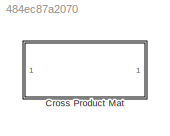
MODEL slx_484ec87a2070
KIND library
CONFIG AbsTol = auto
CONFIG EnableMultiTasking = off
CONFIG FixedStep = auto
CONFIG MaxStep = auto
CONFIG MinStep = auto
CONFIG RelTol = 1e-3
CONFIG SampleTimeConstraint = Unconstrained
CONFIG SolverName = VariableStepAuto
CONFIG StartTime = 0.0
CONFIG StopTime = 10.0
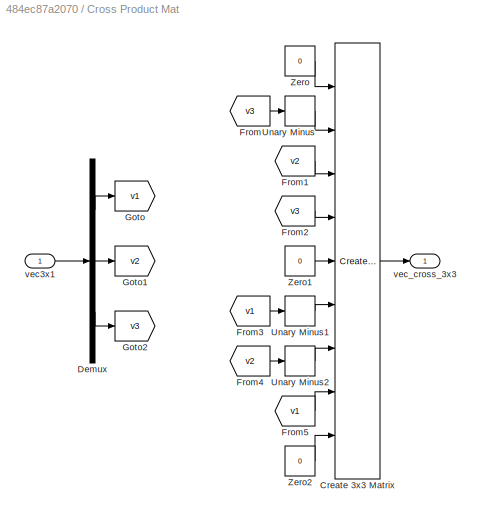
BLOCK [SubSystem] Cross Product Mat
  Ports = [1, 1]
  RequestExecContextInheritance = off
BLOCK [Reference] Cross Product Mat/Create 3x3 Matrix  REF=sharedutil/Create 3x3 Matrix
  Ports = [9, 1]
  SourceBlock = sharedutil/Create 3x3 Matrix
  SourceProductBaseCode = AE,PW,DR,MT,VE
  SourceType = Create 3x3 Matrix
BLOCK [Demux] Cross Product Mat/Demux
  Outputs = 3
  Ports = [1, 3]
BLOCK [From] Cross Product Mat/From
  GotoTag = v3
BLOCK [From] Cross Product Mat/From1
  GotoTag = v2
BLOCK [From] Cross Product Mat/From2
  GotoTag = v3
BLOCK [From] Cross Product Mat/From3
  GotoTag = v1
BLOCK [From] Cross Product Mat/From4
  GotoTag = v2
BLOCK [From] Cross Product Mat/From5
  GotoTag = v1
BLOCK [Goto] Cross Product Mat/Goto
  GotoTag = v1
BLOCK [Goto] Cross Product Mat/Goto1
  GotoTag = v2
BLOCK [Goto] Cross Product Mat/Goto2
  GotoTag = v3
BLOCK [UnaryMinus] Cross Product Mat/Unary Minus
BLOCK [UnaryMinus] Cross Product Mat/Unary Minus1
BLOCK [UnaryMinus] Cross Product Mat/Unary Minus2
BLOCK [Constant] Cross Product Mat/Zero
  OutDataTypeStr = Inherit: Inherit via back propagation
  Value = 0
BLOCK [Constant] Cross Product Mat/Zero1
  OutDataTypeStr = Inherit: Inherit via back propagation
  Value = 0
BLOCK [Constant] Cross Product Mat/Zero2
  OutDataTypeStr = Inherit: Inherit via back propagation
  Value = 0
BLOCK [Inport] Cross Product Mat/vec3x1
BLOCK [Outport] Cross Product Mat/vec_cross_3x3
  VectorParamsAs1DForOutWhenUnconnected = off
LINE Cross Product Mat/Create 3x3 Matrix:1 -> Cross Product Mat/vec_cross_3x3:1
LINE Cross Product Mat/Demux:1 -> Cross Product Mat/Goto:1
LINE Cross Product Mat/Demux:2 -> Cross Product Mat/Goto1:1
LINE Cross Product Mat/Demux:3 -> Cross Product Mat/Goto2:1
LINE Cross Product Mat/From1:1 -> Cross Product Mat/Create 3x3 Matrix:3
LINE Cross Product Mat/From2:1 -> Cross Product Mat/Create 3x3 Matrix:4
LINE Cross Product Mat/From3:1 -> Cross Product Mat/Unary Minus1:1
LINE Cross Product Mat/From4:1 -> Cross Product Mat/Unary Minus2:1
LINE Cross Product Mat/From5:1 -> Cross Product Mat/Create 3x3 Matrix:8
LINE Cross Product Mat/From:1 -> Cross Product Mat/Unary Minus:1
LINE Cross Product Mat/Unary Minus1:1 -> Cross Product Mat/Create 3x3 Matrix:6
LINE Cross Product Mat/Unary Minus2:1 -> Cross Product Mat/Create 3x3 Matrix:7
LINE Cross Product Mat/Unary Minus:1 -> Cross Product Mat/Create 3x3 Matrix:2
LINE Cross Product Mat/Zero1:1 -> Cross Product Mat/Create 3x3 Matrix:5
LINE Cross Product Mat/Zero2:1 -> Cross Product Mat/Create 3x3 Matrix:9
LINE Cross Product Mat/Zero:1 -> Cross Product Mat/Create 3x3 Matrix:1
LINE Cross Product Mat/vec3x1:1 -> Cross Product Mat/Demux:1
